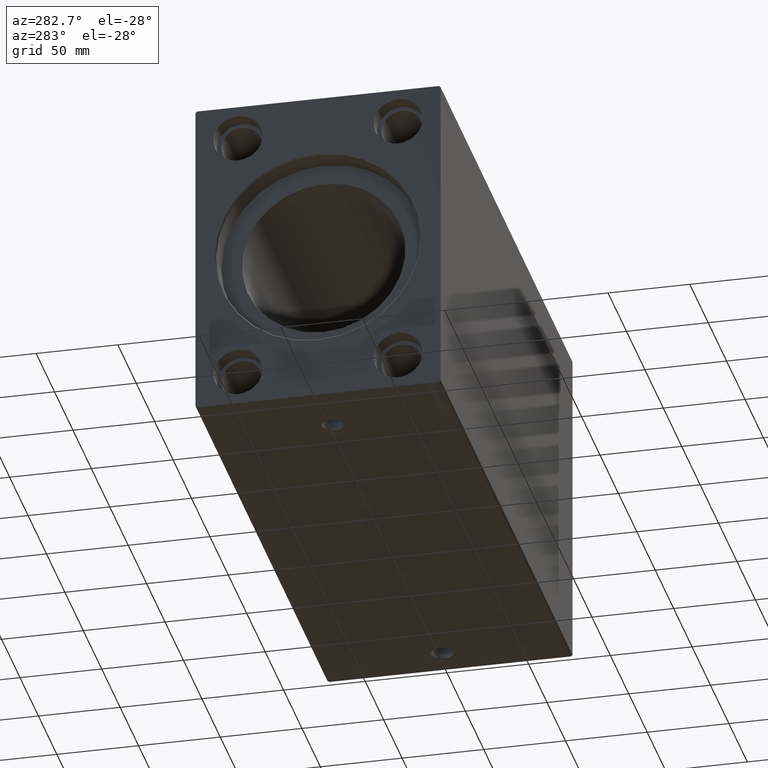
[diagram: clean part render]
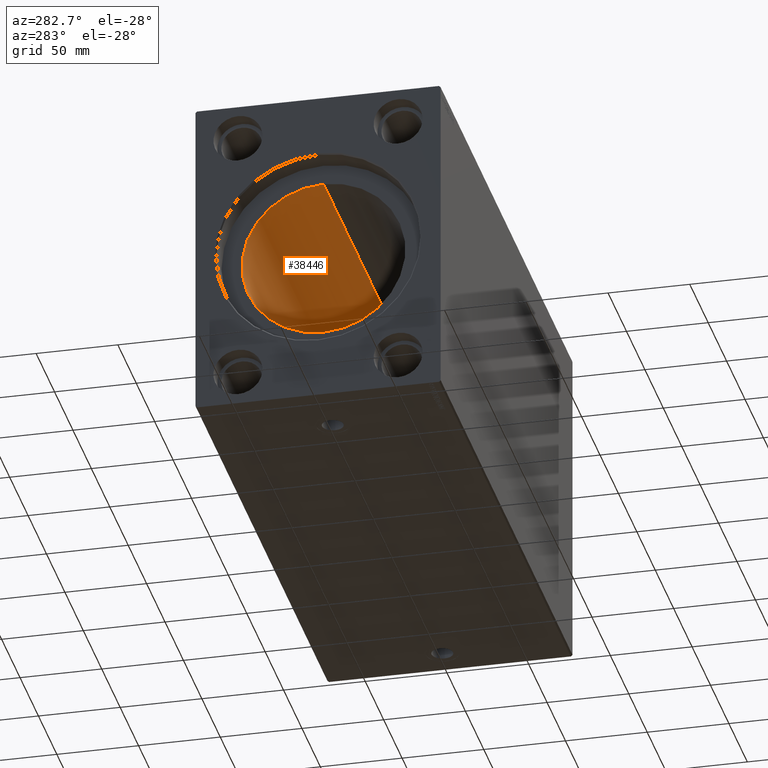
[diagram: same view with one face highlighted and labeled with its STEP entity id]
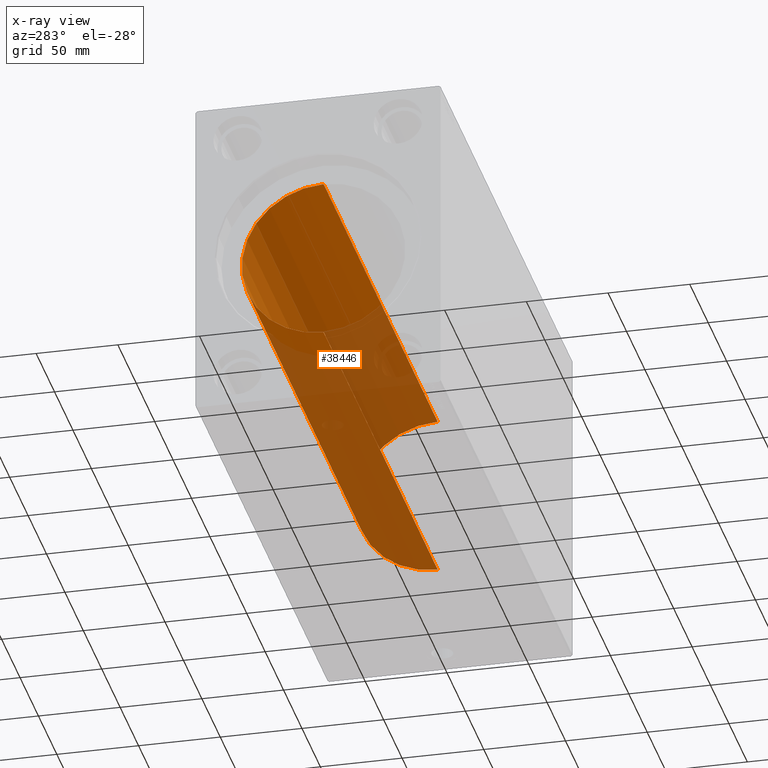
[diagram: x-ray of the same camera — body ghosted, the highlighted face saturated]
A machine part, auxiliary view. The second image highlights one B-rep face of the part: STEP entity #38446.
The next image is the same camera in x-ray: the body ghosted, the highlighted face saturated — about 57% of this face is hidden behind the body in this view.
In plain terms, the highlighted cylindrical surface (partial cylindrical patch) has radius 50 mm, axis along (-1, -0, -0).
Its self-contained STEP definition (entity closure, byte-faithful):
#154 = LINE ( 'NONE', #22699, #33425 ) ;
#446 = CARTESIAN_POINT ( 'NONE',  ( 324.6999999999999886, 0.000000000000000000, 50.00000000000000000 ) ) ;
#2427 = DIRECTION ( 'NONE',  ( -1.000000000000000000, -0.000000000000000000, -0.000000000000000000 ) ) ;
#2859 = CARTESIAN_POINT ( 'NONE',  ( 324.6999999999999886, 0.000000000000000000, 0.000000000000000000 ) ) ;
#4296 = DIRECTION ( 'NONE',  ( -1.000000000000000000, 0.000000000000000000, 0.000000000000000000 ) ) ;
#4948 = EDGE_CURVE ( 'NONE', #39696, #38463, #154, .T. ) ;
#4989 = VECTOR ( 'NONE', #36077, 1000.000000000000000 ) ;
#6305 = CARTESIAN_POINT ( 'NONE',  ( 324.6999999999999886, 0.000000000000000000, 0.000000000000000000 ) ) ;
#6314 = AXIS2_PLACEMENT_3D ( 'NONE', #6305, #2427, #16190 ) ;
#8385 = CIRCLE ( 'NONE', #24752, 50.00000000000000000 ) ;
#13964 = DIRECTION ( 'NONE',  ( 0.000000000000000000, 0.000000000000000000, 1.000000000000000000 ) ) ;
#15179 = EDGE_CURVE ( 'NONE', #39696, #20243, #41078, .T. ) ;
#15752 = CYLINDRICAL_SURFACE ( 'NONE', #6314, 50.00000000000000000 ) ;
#16190 = DIRECTION ( 'NONE',  ( 0.000000000000000000, 0.000000000000000000, 1.000000000000000000 ) ) ;
#16266 = DIRECTION ( 'NONE',  ( -1.000000000000000000, -0.000000000000000000, -0.000000000000000000 ) ) ;
#18075 = ORIENTED_EDGE ( 'NONE', *, *, #40059, .T. ) ;
#19710 = ORIENTED_EDGE ( 'NONE', *, *, #15179, .F. ) ;
#20243 = VERTEX_POINT ( 'NONE', #26955 ) ;
#20292 = EDGE_LOOP ( 'NONE', ( #21468, #19710, #37640, #18075 ) ) ;
#20370 = LINE ( 'NONE', #23825, #4989 ) ;
#20457 = DIRECTION ( 'NONE',  ( 0.000000000000000000, 0.000000000000000000, 1.000000000000000000 ) ) ;
#21468 = ORIENTED_EDGE ( 'NONE', *, *, #31472, .F. ) ;
#22699 = CARTESIAN_POINT ( 'NONE',  ( 324.6999999999999886, 0.000000000000000000, 50.00000000000000000 ) ) ;
#23825 = CARTESIAN_POINT ( 'NONE',  ( 324.6999999999999886, 6.123233995736766085E-15, -50.00000000000000000 ) ) ;
#24752 = AXIS2_PLACEMENT_3D ( 'NONE', #30576, #36009, #20457 ) ;
#25451 = CARTESIAN_POINT ( 'NONE',  ( 15.00000000000001421, 6.123233995736766085E-15, -50.00000000000000000 ) ) ;
#26955 = CARTESIAN_POINT ( 'NONE',  ( 324.6999999999999886, 6.123233995736766085E-15, -50.00000000000000000 ) ) ;
#30576 = CARTESIAN_POINT ( 'NONE',  ( 15.00000000000001421, 0.000000000000000000, 0.000000000000000000 ) ) ;
#31472 = EDGE_CURVE ( 'NONE', #20243, #35679, #20370, .T. ) ;
#32510 = FACE_OUTER_BOUND ( 'NONE', #20292, .T. ) ;
#33425 = VECTOR ( 'NONE', #16266, 1000.000000000000000 ) ;
#34223 = AXIS2_PLACEMENT_3D ( 'NONE', #2859, #4296, #13964 ) ;
#35679 = VERTEX_POINT ( 'NONE', #25451 ) ;
#36009 = DIRECTION ( 'NONE',  ( -1.000000000000000000, 0.000000000000000000, 0.000000000000000000 ) ) ;
#36077 = DIRECTION ( 'NONE',  ( -1.000000000000000000, -0.000000000000000000, -0.000000000000000000 ) ) ;
#37640 = ORIENTED_EDGE ( 'NONE', *, *, #4948, .T. ) ;
#38446 = ADVANCED_FACE ( 'NONE', ( #32510 ), #15752, .F. ) ;
#38463 = VERTEX_POINT ( 'NONE', #40432 ) ;
#39696 = VERTEX_POINT ( 'NONE', #446 ) ;
#40059 = EDGE_CURVE ( 'NONE', #38463, #35679, #8385, .T. ) ;
#40432 = CARTESIAN_POINT ( 'NONE',  ( 15.00000000000001421, 0.000000000000000000, 50.00000000000000000 ) ) ;
#41078 = CIRCLE ( 'NONE', #34223, 50.00000000000000000 ) ;